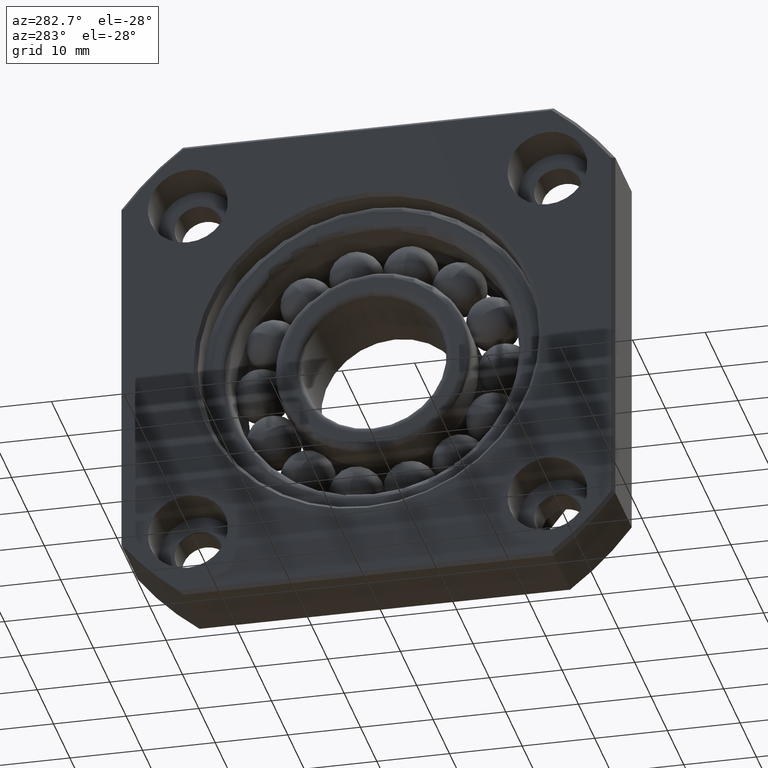
[diagram: clean part render]
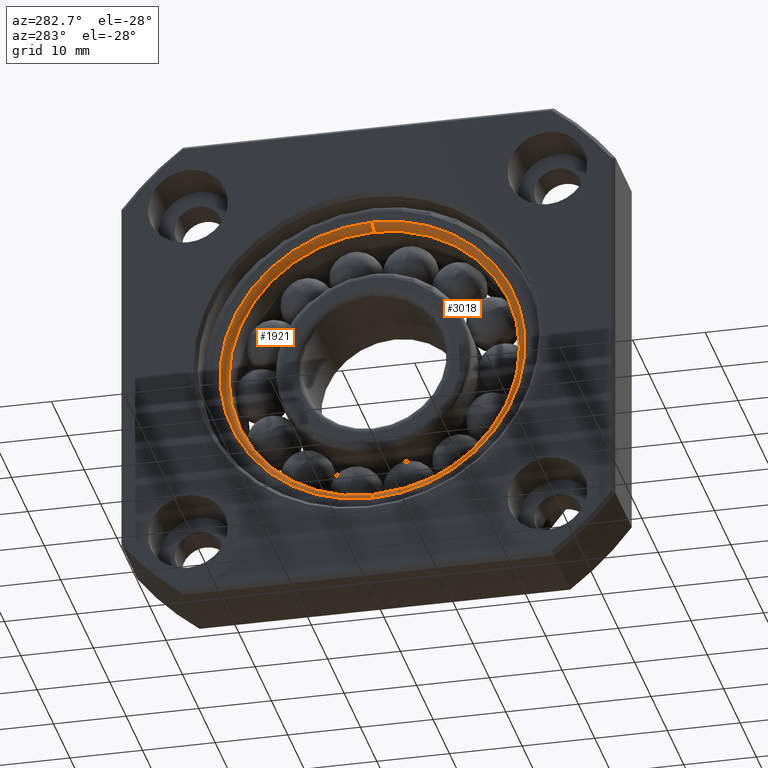
[diagram: same view with one multi-face feature highlighted, each face labeled with its STEP entity id]
A machine part, auxiliary view. The highlighted faces form ONE feature: a constant-radius fillet chain: 2 tangent blend faces with common blend radius 1 mm. The faces share edges in the B-rep.
Their STEP definitions:
[1] entity #3018 (Torus):
#604 = VERTEX_POINT ( 'NONE', #737 ) ;
#605 = VERTEX_POINT ( 'NONE', #736 ) ;
#731 = CIRCLE ( 'NONE', #792, 19.99999999999999600 ) ;
#736 = CARTESIAN_POINT ( 'NONE',  ( 4.000000000000001800, 0.0000000000000000000, -19.99999999999999600 ) ) ;
#737 = CARTESIAN_POINT ( 'NONE',  ( 4.000000000000001800, 2.510443025335873400E-015, 19.99999999999999600 ) ) ;
#789 = DIRECTION ( 'NONE',  ( 0.0000000000000000000, 0.0000000000000000000, -1.000000000000000000 ) ) ;
#790 = DIRECTION ( 'NONE',  ( 1.000000000000000000, 0.0000000000000000000, 0.0000000000000000000 ) ) ;
#791 = CARTESIAN_POINT ( 'NONE',  ( 4.000000000000001800, 0.0000000000000000000, 0.0000000000000000000 ) ) ;
#792 = AXIS2_PLACEMENT_3D ( 'NONE', #791, #790, #789 ) ;
#824 = DIRECTION ( 'NONE',  ( 0.0000000000000000000, 0.0000000000000000000, -1.000000000000000000 ) ) ;
#825 = DIRECTION ( 'NONE',  ( 0.0000000000000000000, -1.000000000000000000, 0.0000000000000000000 ) ) ;
#826 = CARTESIAN_POINT ( 'NONE',  ( 4.000000000000001800, 0.0000000000000000000, -21.00000000000000000 ) ) ;
#827 = AXIS2_PLACEMENT_3D ( 'NONE', #826, #825, #824 ) ;
#828 = CIRCLE ( 'NONE', #827, 1.000000000000000900 ) ;
#873 = CARTESIAN_POINT ( 'NONE',  ( 2.999999999999999600, 2.571673343026992200E-015, 20.99999999999999600 ) ) ;
#884 = CARTESIAN_POINT ( 'NONE',  ( 2.999999999999999600, 0.0000000000000000000, -20.99999999999999600 ) ) ;
#1047 = CIRCLE ( 'NONE', #1108, 1.000000000000000900 ) ;
#1105 = DIRECTION ( 'NONE',  ( 0.0000000000000000000, 1.224606353822380200E-016, 1.000000000000000000 ) ) ;
#1106 = DIRECTION ( 'NONE',  ( 0.0000000000000000000, 1.000000000000000000, -1.224606353822377300E-016 ) ) ;
#1107 = CARTESIAN_POINT ( 'NONE',  ( 4.000000000000001800, 2.571673343026992200E-015, 21.00000000000000000 ) ) ;
#1108 = AXIS2_PLACEMENT_3D ( 'NONE', #1107, #1106, #1105 ) ;
#1109 = EDGE_CURVE ( 'NONE', #604, #605, #731, .T. ) ;
#1361 = DIRECTION ( 'NONE',  ( 0.0000000000000000000, 0.0000000000000000000, -1.000000000000000000 ) ) ;
#1362 = DIRECTION ( 'NONE',  ( 1.000000000000000000, 0.0000000000000000000, 0.0000000000000000000 ) ) ;
#1363 = CARTESIAN_POINT ( 'NONE',  ( 4.000000000000001800, 0.0000000000000000000, 0.0000000000000000000 ) ) ;
#1364 = AXIS2_PLACEMENT_3D ( 'NONE', #1363, #1362, #1361 ) ;
#1365 = TOROIDAL_SURFACE ( 'NONE', #1364, 21.00000000000000000, 1.000000000000001800 ) ;
#1366 = FACE_OUTER_BOUND ( 'NONE', #3015, .T. ) ;
#1367 = DIRECTION ( 'NONE',  ( 0.0000000000000000000, 0.0000000000000000000, -1.000000000000000000 ) ) ;
#1368 = DIRECTION ( 'NONE',  ( 1.000000000000000000, 0.0000000000000000000, 0.0000000000000000000 ) ) ;
#1369 = CARTESIAN_POINT ( 'NONE',  ( 2.999999999999999100, 0.0000000000000000000, 0.0000000000000000000 ) ) ;
#1370 = AXIS2_PLACEMENT_3D ( 'NONE', #1369, #1368, #1367 ) ;
#1375 = CIRCLE ( 'NONE', #1370, 21.00000000000000000 ) ;
#1417 = EDGE_CURVE ( 'NONE', #605, #1436, #828, .T. ) ;
#1436 = VERTEX_POINT ( 'NONE', #884 ) ;
#1446 = VERTEX_POINT ( 'NONE', #873 ) ;
#1910 = EDGE_CURVE ( 'NONE', #604, #1446, #1047, .T. ) ;
#3014 = ORIENTED_EDGE ( 'NONE', *, *, #1910, .F. ) ;
#3015 = EDGE_LOOP ( 'NONE', ( #3014, #3043, #3061, #3038 ) ) ;
#3017 = EDGE_CURVE ( 'NONE', #1446, #1436, #1375, .T. ) ;
#3018 = ADVANCED_FACE ( 'NONE', ( #1366 ), #1365, .T. ) ;
#3038 = ORIENTED_EDGE ( 'NONE', *, *, #3017, .F. ) ;
#3043 = ORIENTED_EDGE ( 'NONE', *, *, #1109, .T. ) ;
#3061 = ORIENTED_EDGE ( 'NONE', *, *, #1417, .T. ) ;
[2] entity #1921 (Torus):
#600 = EDGE_LOOP ( 'NONE', ( #1444, #1909, #1435, #1428 ) ) ;
#604 = VERTEX_POINT ( 'NONE', #737 ) ;
#605 = VERTEX_POINT ( 'NONE', #736 ) ;
#736 = CARTESIAN_POINT ( 'NONE',  ( 4.000000000000001800, 0.0000000000000000000, -19.99999999999999600 ) ) ;
#737 = CARTESIAN_POINT ( 'NONE',  ( 4.000000000000001800, 2.510443025335873400E-015, 19.99999999999999600 ) ) ;
#824 = DIRECTION ( 'NONE',  ( 0.0000000000000000000, 0.0000000000000000000, -1.000000000000000000 ) ) ;
#825 = DIRECTION ( 'NONE',  ( 0.0000000000000000000, -1.000000000000000000, 0.0000000000000000000 ) ) ;
#826 = CARTESIAN_POINT ( 'NONE',  ( 4.000000000000001800, 0.0000000000000000000, -21.00000000000000000 ) ) ;
#827 = AXIS2_PLACEMENT_3D ( 'NONE', #826, #825, #824 ) ;
#828 = CIRCLE ( 'NONE', #827, 1.000000000000000900 ) ;
#873 = CARTESIAN_POINT ( 'NONE',  ( 2.999999999999999600, 2.571673343026992200E-015, 20.99999999999999600 ) ) ;
#884 = CARTESIAN_POINT ( 'NONE',  ( 2.999999999999999600, 0.0000000000000000000, -20.99999999999999600 ) ) ;
#1008 = DIRECTION ( 'NONE',  ( 0.0000000000000000000, 0.0000000000000000000, -1.000000000000000000 ) ) ;
#1009 = DIRECTION ( 'NONE',  ( 1.000000000000000000, 0.0000000000000000000, 0.0000000000000000000 ) ) ;
#1010 = CARTESIAN_POINT ( 'NONE',  ( 2.999999999999999100, 0.0000000000000000000, 0.0000000000000000000 ) ) ;
#1011 = AXIS2_PLACEMENT_3D ( 'NONE', #1010, #1009, #1008 ) ;
#1012 = CIRCLE ( 'NONE', #1011, 21.00000000000000000 ) ;
#1047 = CIRCLE ( 'NONE', #1108, 1.000000000000000900 ) ;
#1076 = DIRECTION ( 'NONE',  ( 0.0000000000000000000, 0.0000000000000000000, -1.000000000000000000 ) ) ;
#1077 = DIRECTION ( 'NONE',  ( 1.000000000000000000, 0.0000000000000000000, 0.0000000000000000000 ) ) ;
#1078 = CARTESIAN_POINT ( 'NONE',  ( 4.000000000000001800, 0.0000000000000000000, 0.0000000000000000000 ) ) ;
#1079 = AXIS2_PLACEMENT_3D ( 'NONE', #1078, #1077, #1076 ) ;
#1080 = TOROIDAL_SURFACE ( 'NONE', #1079, 21.00000000000000000, 1.000000000000001800 ) ;
#1085 = FACE_OUTER_BOUND ( 'NONE', #600, .T. ) ;
#1088 = DIRECTION ( 'NONE',  ( 0.0000000000000000000, 0.0000000000000000000, -1.000000000000000000 ) ) ;
#1089 = DIRECTION ( 'NONE',  ( 1.000000000000000000, 0.0000000000000000000, 0.0000000000000000000 ) ) ;
#1090 = CARTESIAN_POINT ( 'NONE',  ( 4.000000000000001800, 0.0000000000000000000, 0.0000000000000000000 ) ) ;
#1091 = AXIS2_PLACEMENT_3D ( 'NONE', #1090, #1089, #1088 ) ;
#1092 = CIRCLE ( 'NONE', #1091, 19.99999999999999600 ) ;
#1105 = DIRECTION ( 'NONE',  ( 0.0000000000000000000, 1.224606353822380200E-016, 1.000000000000000000 ) ) ;
#1106 = DIRECTION ( 'NONE',  ( 0.0000000000000000000, 1.000000000000000000, -1.224606353822377300E-016 ) ) ;
#1107 = CARTESIAN_POINT ( 'NONE',  ( 4.000000000000001800, 2.571673343026992200E-015, 21.00000000000000000 ) ) ;
#1108 = AXIS2_PLACEMENT_3D ( 'NONE', #1107, #1106, #1105 ) ;
#1417 = EDGE_CURVE ( 'NONE', #605, #1436, #828, .T. ) ;
#1428 = ORIENTED_EDGE ( 'NONE', *, *, #1417, .F. ) ;
#1435 = ORIENTED_EDGE ( 'NONE', *, *, #1858, .F. ) ;
#1436 = VERTEX_POINT ( 'NONE', #884 ) ;
#1444 = ORIENTED_EDGE ( 'NONE', *, *, #1918, .T. ) ;
#1446 = VERTEX_POINT ( 'NONE', #873 ) ;
#1858 = EDGE_CURVE ( 'NONE', #1436, #1446, #1012, .T. ) ;
#1909 = ORIENTED_EDGE ( 'NONE', *, *, #1910, .T. ) ;
#1910 = EDGE_CURVE ( 'NONE', #604, #1446, #1047, .T. ) ;
#1918 = EDGE_CURVE ( 'NONE', #605, #604, #1092, .T. ) ;
#1921 = ADVANCED_FACE ( 'NONE', ( #1085 ), #1080, .T. ) ;